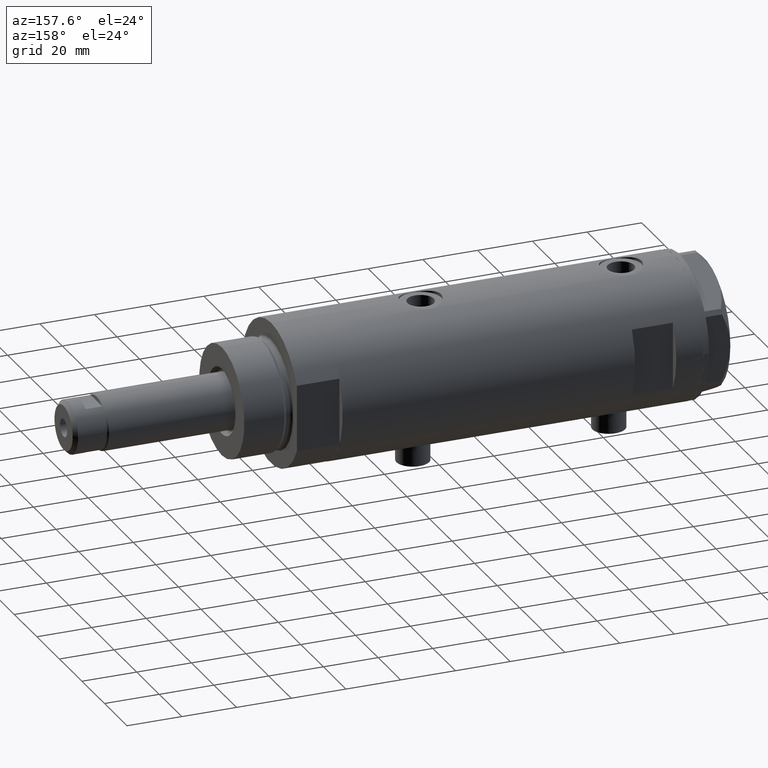
[diagram: clean part render]
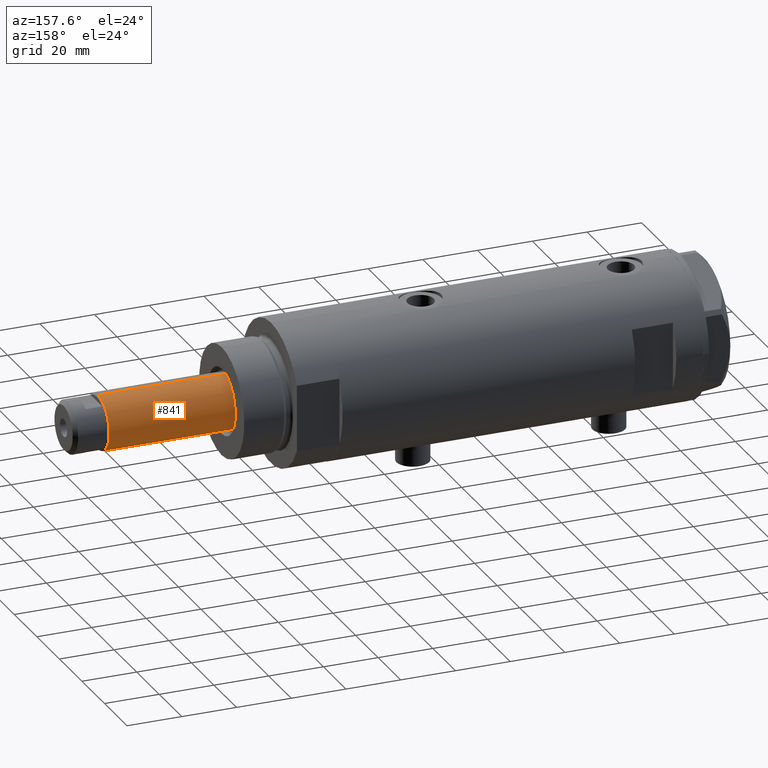
[diagram: same view with one face highlighted and labeled with its STEP entity id]
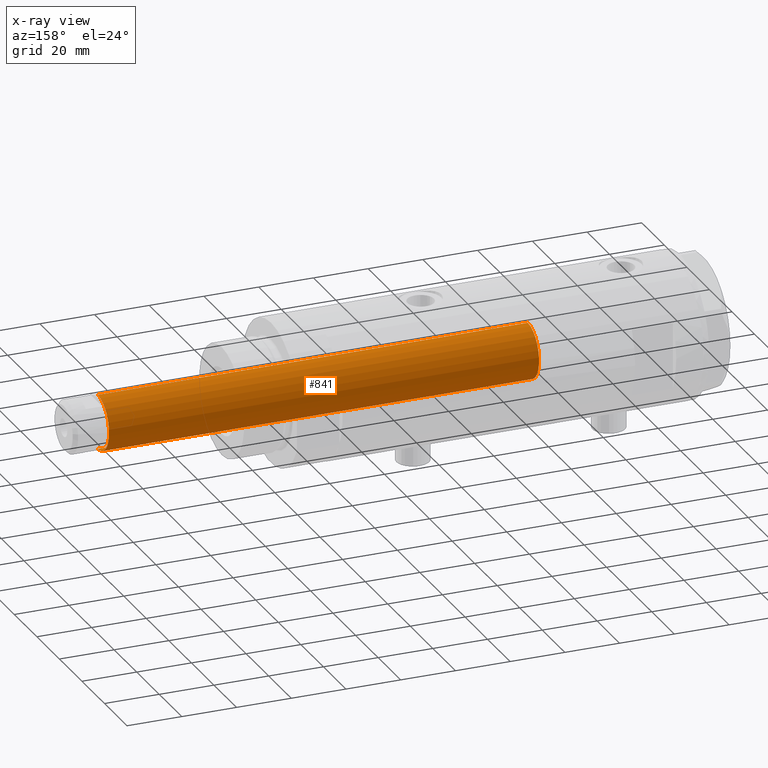
[diagram: x-ray of the same camera — body ghosted, the highlighted face saturated]
A machine part, auxiliary view. The second image highlights one B-rep face of the part: STEP entity #841.
The next image is the same camera in x-ray: the body ghosted, the highlighted face saturated — about 0% of this face is hidden behind the body in this view.
In plain terms, the highlighted cylindrical surface (edge-blend (fillet) strip) has radius 10 mm, axis along (-1, -0, 0).
Its self-contained STEP definition (entity closure, byte-faithful):
#6 = VERTEX_POINT ( 'NONE', #3138 ) ;
#83 = CARTESIAN_POINT ( 'NONE',  ( 10.00000000000000000, 1.224646799147353256E-15, 29.75000000000000000 ) ) ;
#191 = AXIS2_PLACEMENT_3D ( 'NONE', #2121, #3158, #3301 ) ;
#204 = LINE ( 'NONE', #1816, #3071 ) ;
#259 = CARTESIAN_POINT ( 'NONE',  ( -10.00000000000000000, 0.000000000000000000, 187.4000000000000057 ) ) ;
#383 = DIRECTION ( 'NONE',  ( 1.000000000000000000, 0.000000000000000000, 0.000000000000000000 ) ) ;
#471 = ORIENTED_EDGE ( 'NONE', *, *, #4020, .T. ) ;
#639 = ORIENTED_EDGE ( 'NONE', *, *, #1770, .T. ) ;
#784 = AXIS2_PLACEMENT_3D ( 'NONE', #4098, #2328, #383 ) ;
#841 = ADVANCED_FACE ( 'NONE', ( #4909 ), #1358, .T. ) ;
#914 = VERTEX_POINT ( 'NONE', #83 ) ;
#1149 = ORIENTED_EDGE ( 'NONE', *, *, #2669, .T. ) ;
#1307 = CARTESIAN_POINT ( 'NONE',  ( 0.000000000000000000, 0.000000000000000000, 187.4000000000000057 ) ) ;
#1358 = CYLINDRICAL_SURFACE ( 'NONE', #1447, 10.00000000000000000 ) ;
#1447 = AXIS2_PLACEMENT_3D ( 'NONE', #1307, #4563, #3779 ) ;
#1705 = CARTESIAN_POINT ( 'NONE',  ( -10.00000000000000000, 0.000000000000000000, 29.75000000000000000 ) ) ;
#1770 = EDGE_CURVE ( 'NONE', #914, #2941, #4738, .T. ) ;
#1816 = CARTESIAN_POINT ( 'NONE',  ( 10.00000000000000000, 1.224646799147353256E-15, 187.4000000000000057 ) ) ;
#1965 = EDGE_CURVE ( 'NONE', #6, #2941, #4295, .T. ) ;
#2099 = CARTESIAN_POINT ( 'NONE',  ( 10.00000000000000000, 1.224646799147353256E-15, 186.9000000000000057 ) ) ;
#2121 = CARTESIAN_POINT ( 'NONE',  ( 0.000000000000000000, 0.000000000000000000, 186.9000000000000057 ) ) ;
#2138 = CIRCLE ( 'NONE', #191, 10.00000000000000000 ) ;
#2229 = ORIENTED_EDGE ( 'NONE', *, *, #1965, .F. ) ;
#2328 = DIRECTION ( 'NONE',  ( 0.000000000000000000, 0.000000000000000000, 1.000000000000000000 ) ) ;
#2669 = EDGE_CURVE ( 'NONE', #6, #3580, #2138, .T. ) ;
#2762 = EDGE_LOOP ( 'NONE', ( #1149, #471, #639, #2229 ) ) ;
#2941 = VERTEX_POINT ( 'NONE', #1705 ) ;
#3071 = VECTOR ( 'NONE', #3419, 1000.000000000000000 ) ;
#3138 = CARTESIAN_POINT ( 'NONE',  ( -10.00000000000000000, 0.000000000000000000, 186.9000000000000057 ) ) ;
#3158 = DIRECTION ( 'NONE',  ( 0.000000000000000000, 0.000000000000000000, -1.000000000000000000 ) ) ;
#3301 = DIRECTION ( 'NONE',  ( 1.000000000000000000, 0.000000000000000000, 0.000000000000000000 ) ) ;
#3419 = DIRECTION ( 'NONE',  ( -0.000000000000000000, -0.000000000000000000, -1.000000000000000000 ) ) ;
#3542 = DIRECTION ( 'NONE',  ( -0.000000000000000000, -0.000000000000000000, -1.000000000000000000 ) ) ;
#3580 = VERTEX_POINT ( 'NONE', #2099 ) ;
#3779 = DIRECTION ( 'NONE',  ( -1.000000000000000000, 0.000000000000000000, 0.000000000000000000 ) ) ;
#4020 = EDGE_CURVE ( 'NONE', #3580, #914, #204, .T. ) ;
#4098 = CARTESIAN_POINT ( 'NONE',  ( 0.000000000000000000, 0.000000000000000000, 29.75000000000000000 ) ) ;
#4295 = LINE ( 'NONE', #259, #4988 ) ;
#4563 = DIRECTION ( 'NONE',  ( -0.000000000000000000, -0.000000000000000000, -1.000000000000000000 ) ) ;
#4738 = CIRCLE ( 'NONE', #784, 10.00000000000000000 ) ;
#4909 = FACE_OUTER_BOUND ( 'NONE', #2762, .T. ) ;
#4988 = VECTOR ( 'NONE', #3542, 1000.000000000000000 ) ;